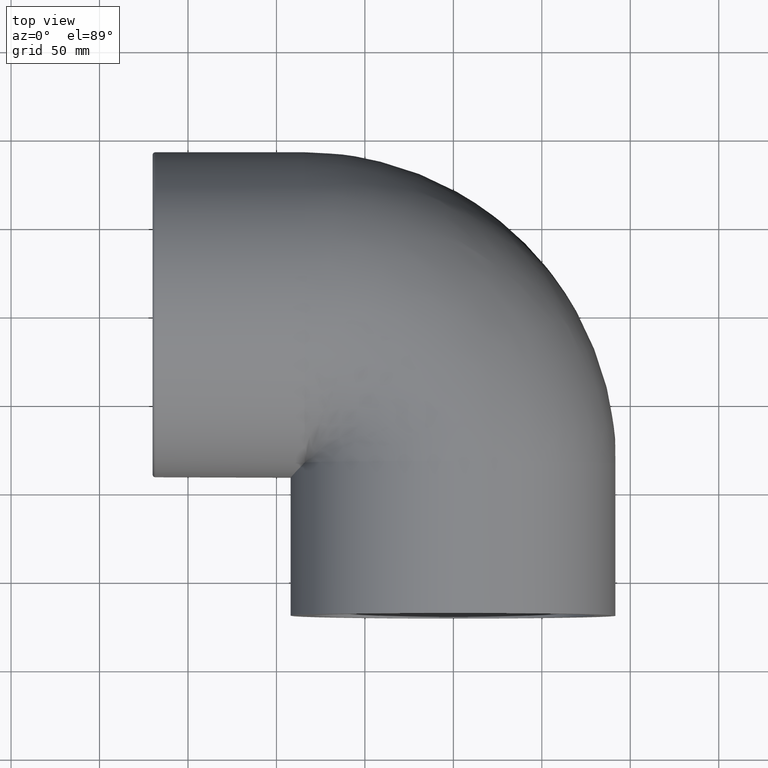
[diagram: clean part render]
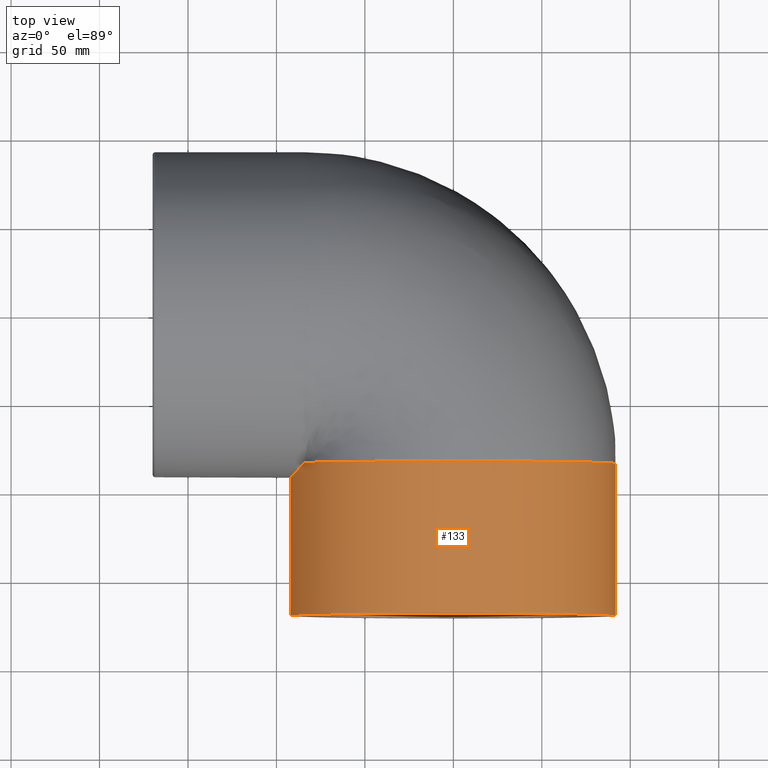
[diagram: same view with one face highlighted and labeled with its STEP entity id]
A machine part, top view. The second image highlights one B-rep face of the part: STEP entity #133.
In plain terms, the highlighted cylindrical surface (bore or boss wall) has radius 92 mm, axis along (0, 1, 0).
Its self-contained STEP definition (entity closure, byte-faithful):
#15=ELLIPSE('',#154,130.107647738325,92.);
#23=CYLINDRICAL_SURFACE('',#153,92.);
#30=FACE_BOUND('',#58,.T.);
#41=FACE_OUTER_BOUND('',#57,.T.);
#57=EDGE_LOOP('',(#113,#114));
#58=EDGE_LOOP('',(#115));
#74=CIRCLE('',#152,92.);
#75=CIRCLE('',#155,92.);
#84=VERTEX_POINT('',#253);
#85=VERTEX_POINT('',#254);
#86=VERTEX_POINT('',#259);
#96=EDGE_CURVE('',#85,#84,#74,.T.);
#97=EDGE_CURVE('',#84,#85,#15,.T.);
#98=EDGE_CURVE('',#86,#86,#75,.T.);
#113=ORIENTED_EDGE('',*,*,#97,.F.);
#114=ORIENTED_EDGE('',*,*,#96,.F.);
#115=ORIENTED_EDGE('',*,*,#98,.T.);
#133=ADVANCED_FACE('',(#41,#30),#23,.T.);
#152=AXIS2_PLACEMENT_3D('',#256,#188,#189);
#153=AXIS2_PLACEMENT_3D('',#257,#190,#191);
#154=AXIS2_PLACEMENT_3D('',#258,#192,#193);
#155=AXIS2_PLACEMENT_3D('',#260,#194,#195);
#188=DIRECTION('center_axis',(6.12323399573677E-17,1.,0.));
#189=DIRECTION('ref_axis',(0.,0.,-1.));
#190=DIRECTION('center_axis',(6.12323399573677E-17,1.,0.));
#191=DIRECTION('ref_axis',(-1.,6.12323399573677E-17,0.));
#192=DIRECTION('center_axis',(-0.707106781186548,0.707106781186548,0.));
#193=DIRECTION('ref_axis',(-0.707106781186547,-0.707106781186547,0.));
#194=DIRECTION('center_axis',(6.12323399573677E-17,1.,0.));
#195=DIRECTION('ref_axis',(0.,0.,-1.));
#253=CARTESIAN_POINT('',(-84.,-84.,-37.5233260785876));
#254=CARTESIAN_POINT('',(-84.,-84.,37.5233260785876));
#256=CARTESIAN_POINT('Origin',(-5.14351655641888E-15,-84.,0.));
#257=CARTESIAN_POINT('Origin',(-7.77650717458569E-15,-127.,0.));
#258=CARTESIAN_POINT('Origin',(0.,0.,0.));
#259=CARTESIAN_POINT('',(-92.,-170.,0.));
#260=CARTESIAN_POINT('Origin',(-1.04094977927525E-14,-170.,0.));